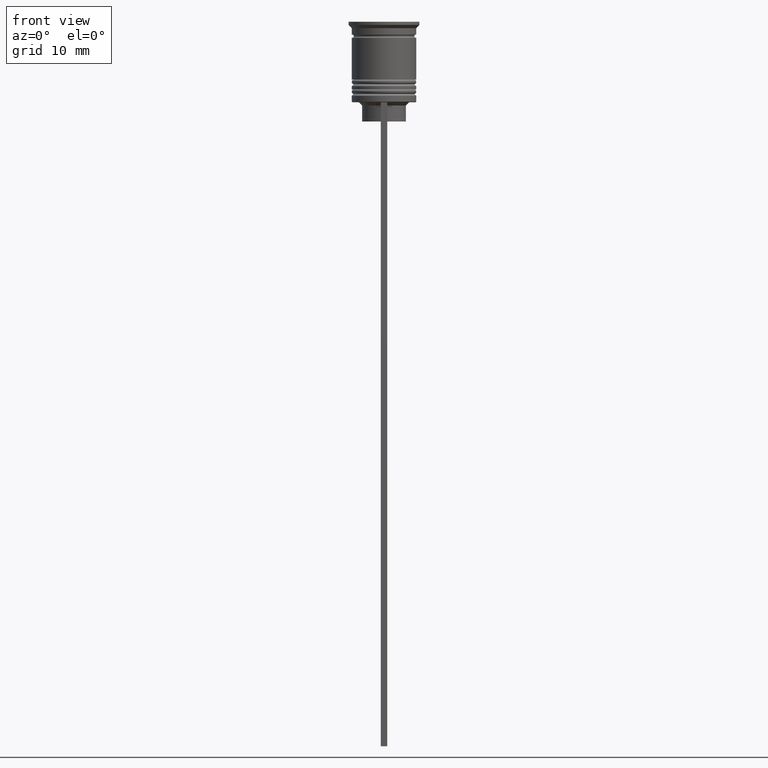
[diagram: clean part render]
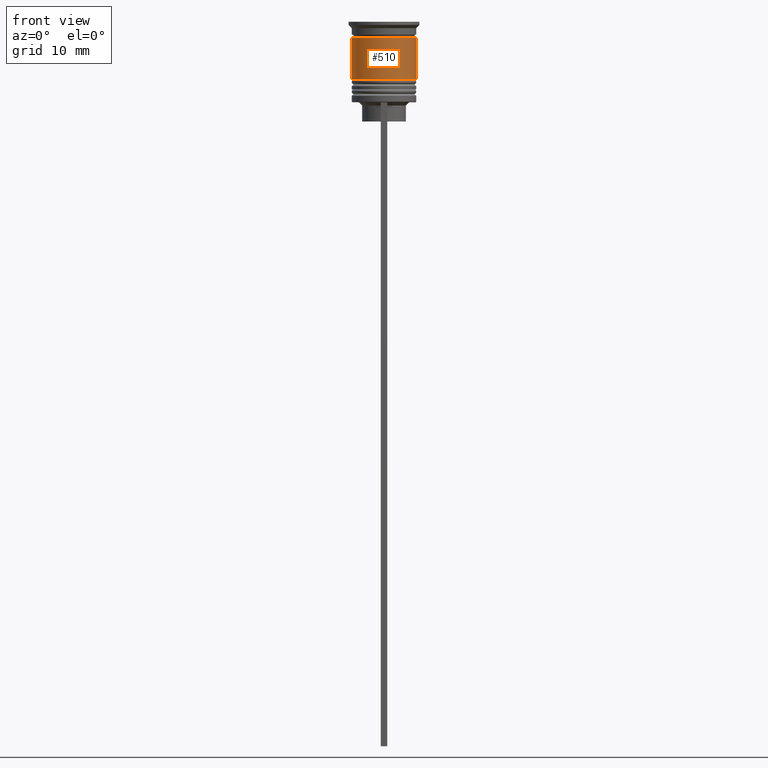
[diagram: same view with one face highlighted and labeled with its STEP entity id]
A machine part, front view. The second image highlights one B-rep face of the part: STEP entity #510.
In plain terms, the highlighted cylindrical surface (edge-blend (fillet) strip) has radius 5 mm, axis along (-0, -0, 1).
Its self-contained STEP definition (entity closure, byte-faithful):
#119 = CIRCLE ( 'NONE', #786, 4.999999999999999112 ) ;
#153 = DIRECTION ( 'NONE',  ( 1.000000000000000000, 0.000000000000000000, 0.000000000000000000 ) ) ;
#288 = ORIENTED_EDGE ( 'NONE', *, *, #817, .F. ) ;
#337 = CIRCLE ( 'NONE', #1797, 5.000000000000000888 ) ;
#341 = LINE ( 'NONE', #2323, #1390 ) ;
#405 = CARTESIAN_POINT ( 'NONE',  ( 4.999999999999999112, 0.000000000000000000, -2.500000000000000000 ) ) ;
#446 = CARTESIAN_POINT ( 'NONE',  ( 0.000000000000000000, 0.000000000000000000, -9.000000000000001776 ) ) ;
#506 = CARTESIAN_POINT ( 'NONE',  ( 0.000000000000000000, 0.000000000000000000, -2.500000000000000000 ) ) ;
#510 = ADVANCED_FACE ( 'NONE', ( #1944 ), #1490, .T. ) ;
#520 = EDGE_CURVE ( 'NONE', #2417, #656, #341, .T. ) ;
#656 = VERTEX_POINT ( 'NONE', #405 ) ;
#751 = ORIENTED_EDGE ( 'NONE', *, *, #520, .T. ) ;
#786 = AXIS2_PLACEMENT_3D ( 'NONE', #506, #1119, #2545 ) ;
#805 = AXIS2_PLACEMENT_3D ( 'NONE', #912, #1736, #153 ) ;
#817 = EDGE_CURVE ( 'NONE', #1381, #1898, #1634, .T. ) ;
#904 = ORIENTED_EDGE ( 'NONE', *, *, #1417, .F. ) ;
#912 = CARTESIAN_POINT ( 'NONE',  ( 0.000000000000000000, 0.000000000000000000, 0.000000000000000000 ) ) ;
#966 = VECTOR ( 'NONE', #2269, 1000.000000000000000 ) ;
#1069 = CARTESIAN_POINT ( 'NONE',  ( -5.000000000000000000, 6.123233995736766282E-16, 0.000000000000000000 ) ) ;
#1106 = CARTESIAN_POINT ( 'NONE',  ( -5.000000000000000888, 6.123233995736767268E-16, -9.000000000000001776 ) ) ;
#1119 = DIRECTION ( 'NONE',  ( -0.000000000000000000, -0.000000000000000000, 1.000000000000000000 ) ) ;
#1191 = CARTESIAN_POINT ( 'NONE',  ( -4.999999999999999112, 6.123233995736766282E-16, -2.500000000000000000 ) ) ;
#1230 = DIRECTION ( 'NONE',  ( 1.000000000000000000, 0.000000000000000000, 0.000000000000000000 ) ) ;
#1378 = CARTESIAN_POINT ( 'NONE',  ( 5.000000000000000888, 0.000000000000000000, -9.000000000000001776 ) ) ;
#1381 = VERTEX_POINT ( 'NONE', #1106 ) ;
#1390 = VECTOR ( 'NONE', #1895, 1000.000000000000000 ) ;
#1417 = EDGE_CURVE ( 'NONE', #1898, #656, #119, .T. ) ;
#1490 = CYLINDRICAL_SURFACE ( 'NONE', #805, 5.000000000000000000 ) ;
#1634 = LINE ( 'NONE', #1069, #966 ) ;
#1692 = ORIENTED_EDGE ( 'NONE', *, *, #2299, .T. ) ;
#1736 = DIRECTION ( 'NONE',  ( -0.000000000000000000, -0.000000000000000000, 1.000000000000000000 ) ) ;
#1797 = AXIS2_PLACEMENT_3D ( 'NONE', #446, #2022, #1230 ) ;
#1836 = EDGE_LOOP ( 'NONE', ( #288, #1692, #751, #904 ) ) ;
#1895 = DIRECTION ( 'NONE',  ( -0.000000000000000000, -0.000000000000000000, 1.000000000000000000 ) ) ;
#1898 = VERTEX_POINT ( 'NONE', #1191 ) ;
#1944 = FACE_OUTER_BOUND ( 'NONE', #1836, .T. ) ;
#2022 = DIRECTION ( 'NONE',  ( -0.000000000000000000, -0.000000000000000000, 1.000000000000000000 ) ) ;
#2269 = DIRECTION ( 'NONE',  ( -0.000000000000000000, -0.000000000000000000, 1.000000000000000000 ) ) ;
#2299 = EDGE_CURVE ( 'NONE', #1381, #2417, #337, .T. ) ;
#2323 = CARTESIAN_POINT ( 'NONE',  ( 5.000000000000000000, 0.000000000000000000, 0.000000000000000000 ) ) ;
#2417 = VERTEX_POINT ( 'NONE', #1378 ) ;
#2545 = DIRECTION ( 'NONE',  ( 1.000000000000000000, 0.000000000000000000, 0.000000000000000000 ) ) ;